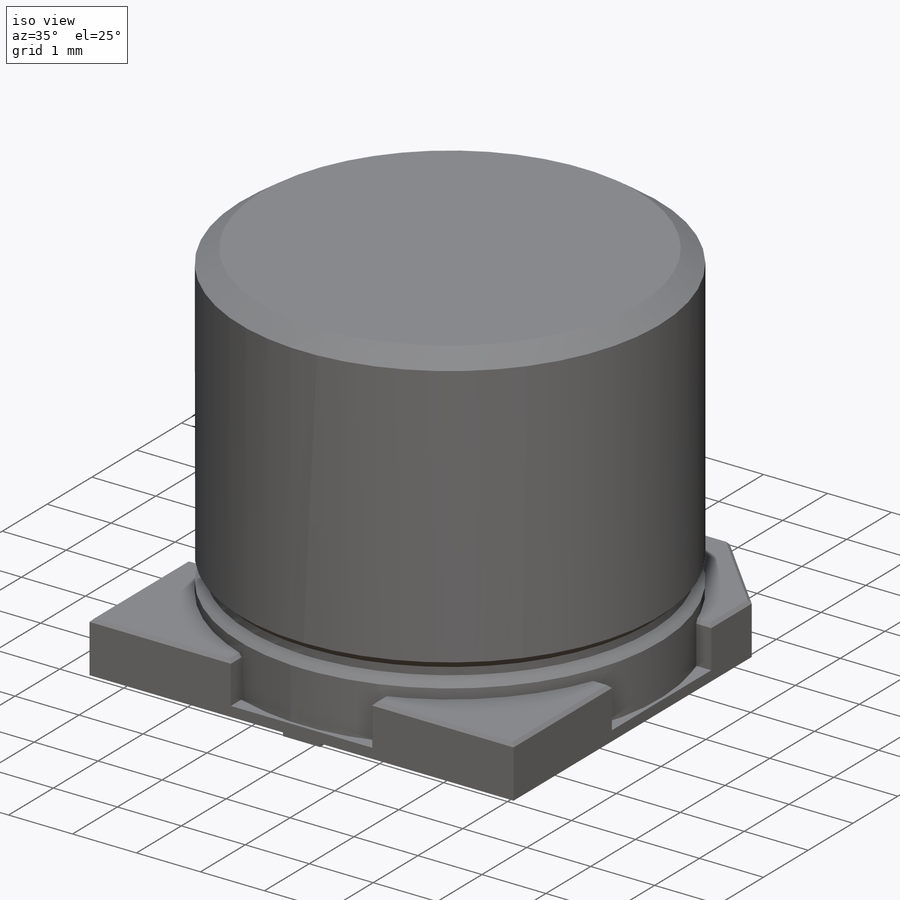
[diagram: iso view]
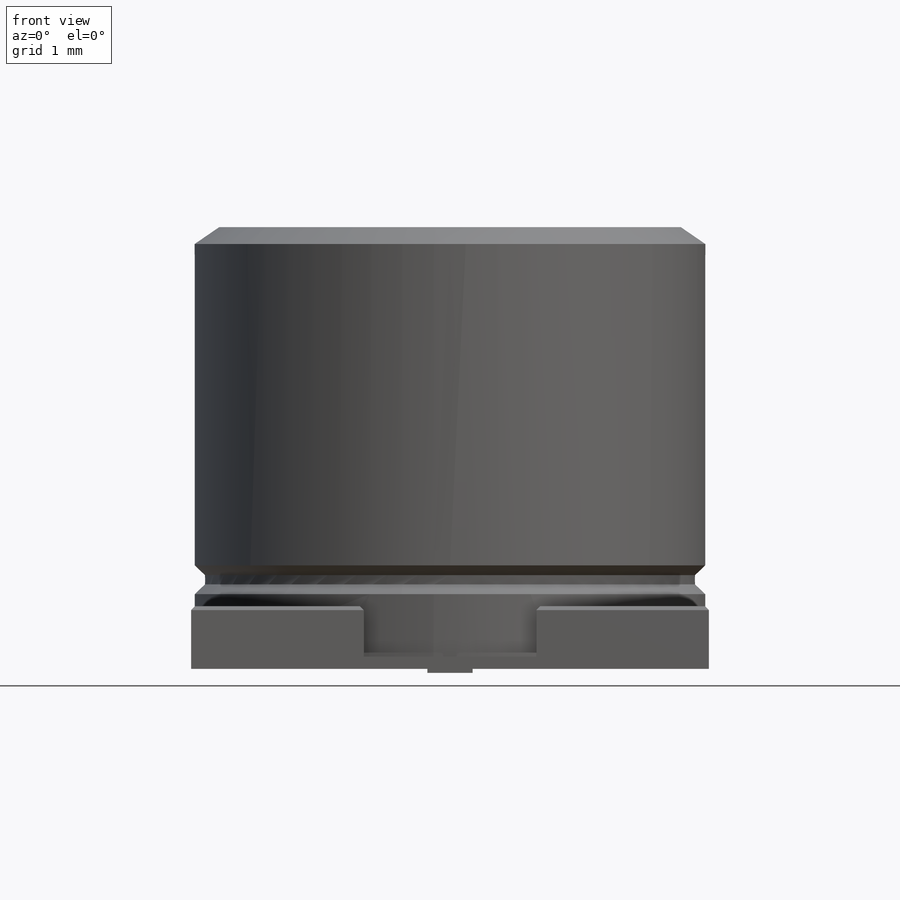
[diagram: front view]
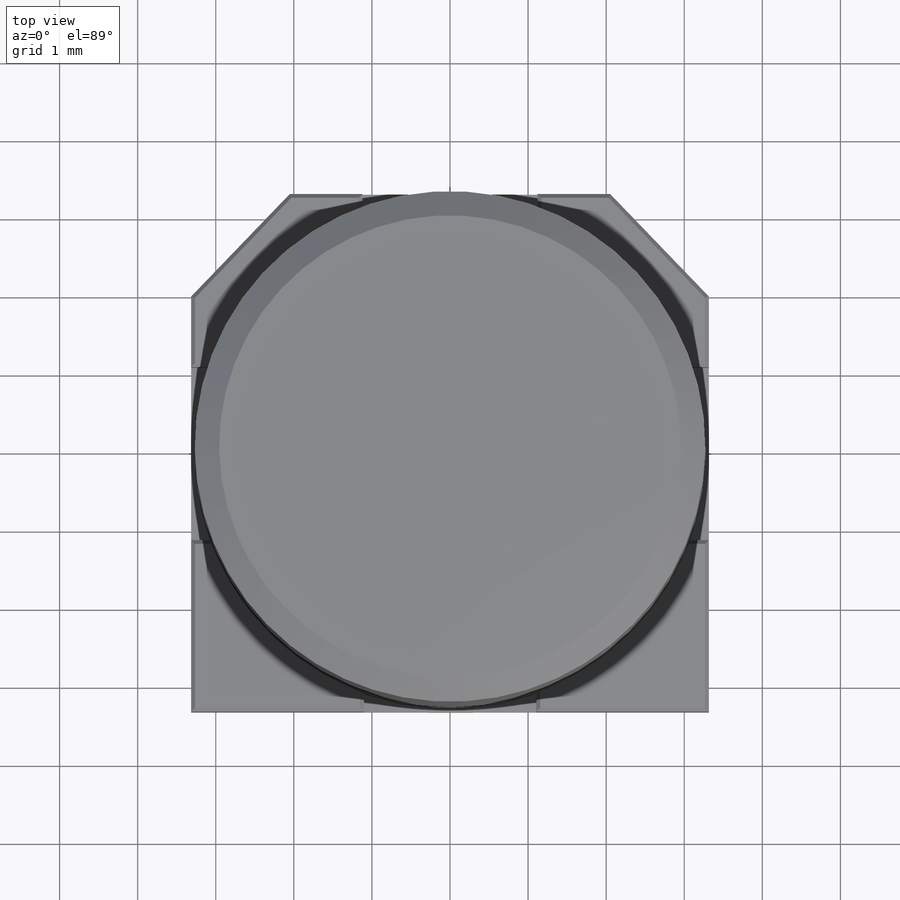
[diagram: top view]
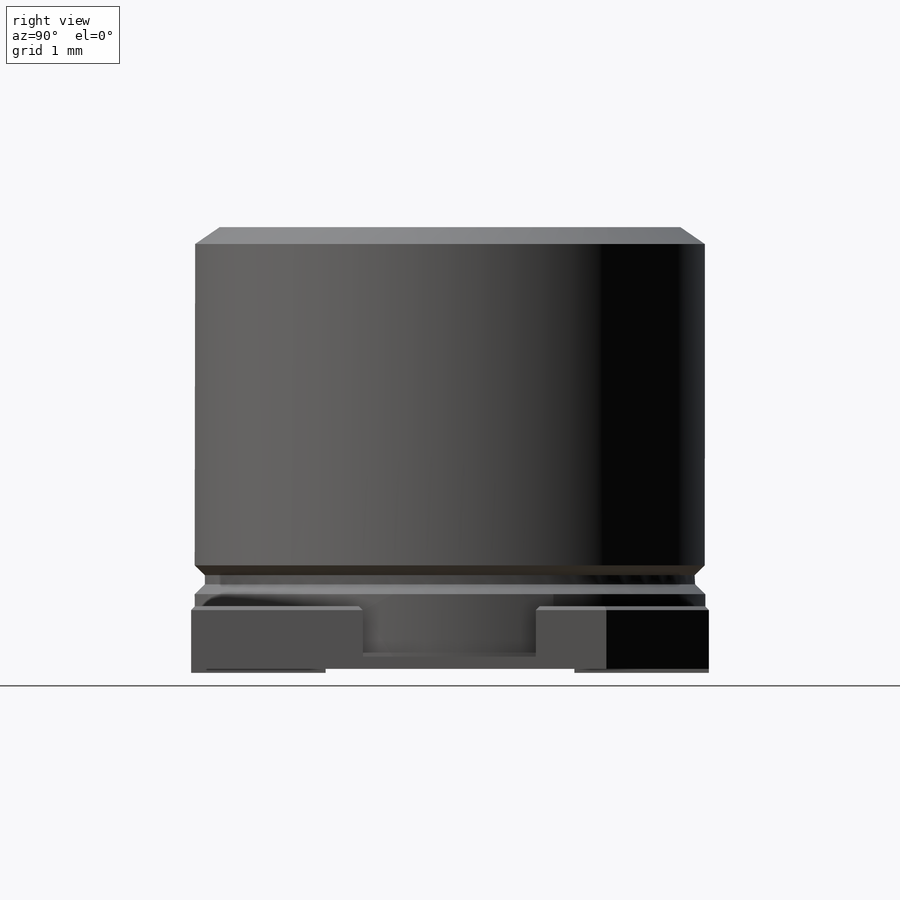
[diagram: right view]
SOLIDWORKS PART (.sldprt)
format: sldprt  version: not decoded by parser v0  size: 405,504 bytes
history: native  units: mm
features: sketch x7, extrude x4, chamfer x2, material x1, cut_revolve x1 (+13 scaffold rows collapsed)
feature tree (28):
  scaffold x13  (default folders/planes/origin — collapsed)
  material  "Material <not specified>"
  sketch  "Sketch1"
  extrude  "Boss-Extrude1"  Depth=0.1571mm
  extrude  "Boss-Extrude2"  [1 undecoded]
  sketch  "Sketch1<4>"  dims[D1=0.6443mm]
  chamfer  "Chamfer1"  Distance=0.0487mm Angle=45deg
  extrude  "Boss-Extrude3"  [1 undecoded]
  sketch  "Sketch1<5>"  dims[D1=0.0514mm]
  sketch  "Sketch2"  dims[D1=6.54mm]
  extrude  "Boss-Extrude4"  Depth=5.5mm
  chamfer  "Chamfer2"  Distance=0.2155mm
  sketch  "Sketch3"  dims[D1=0.368mm D2=0.1308mm D3=0.1251mm D4=0.8mm]
  cut_revolve  "Cut-Revolve1"  Angle=360deg
  sketch  "Sketch4"  dims[D1=2.0mm]
  sketch  "Sketch5"  dims[D1=2.0mm]
decode coverage: 11 of 14 modeling features carry decoded parameters
note: 2 parameter values undecoded
note: suppression state not decoded; provenance and decode notes live in map.json
